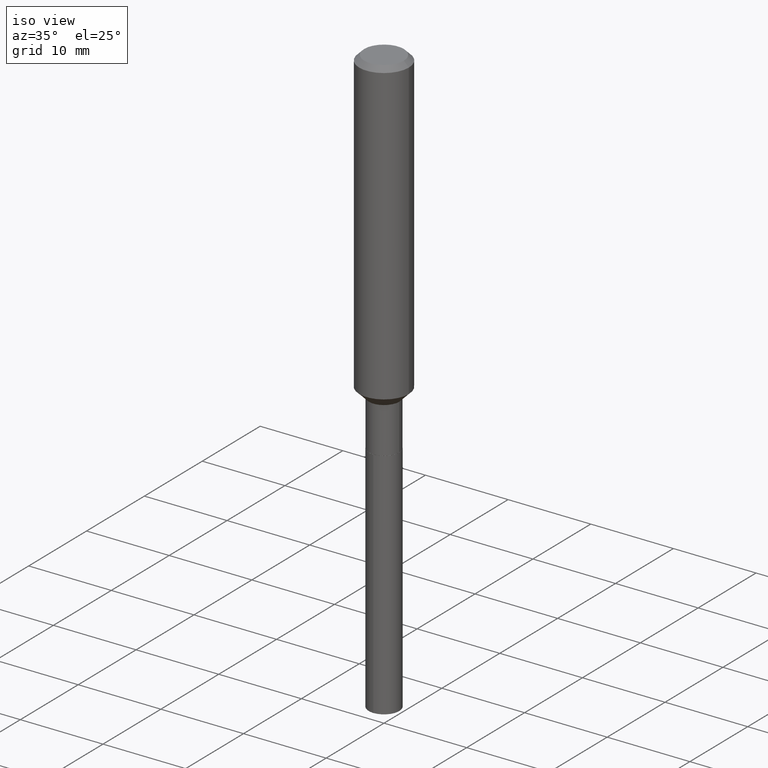
[diagram: clean part render]
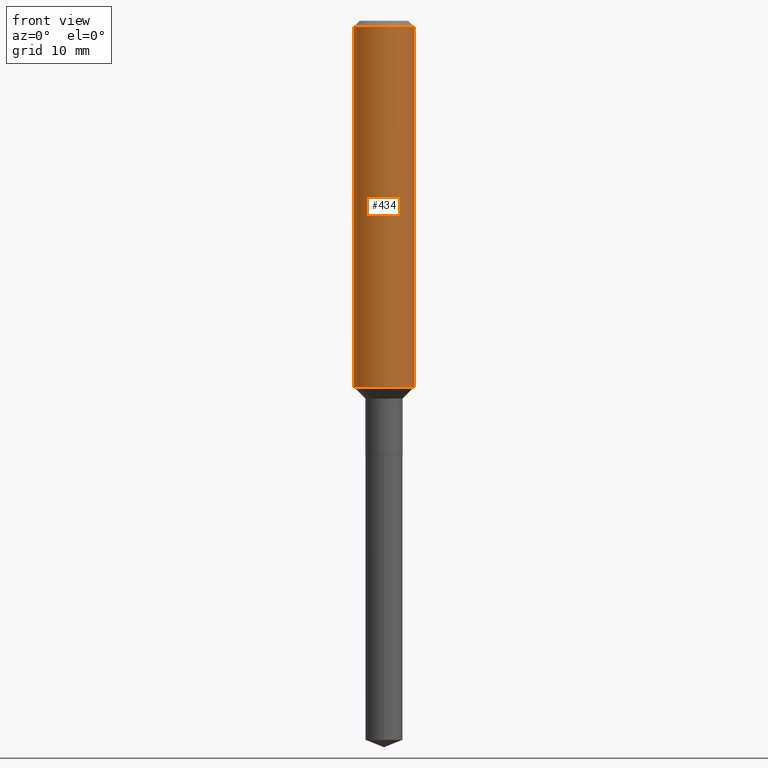
[diagram: tour spotlight — one face highlighted and labeled with its STEP entity id]
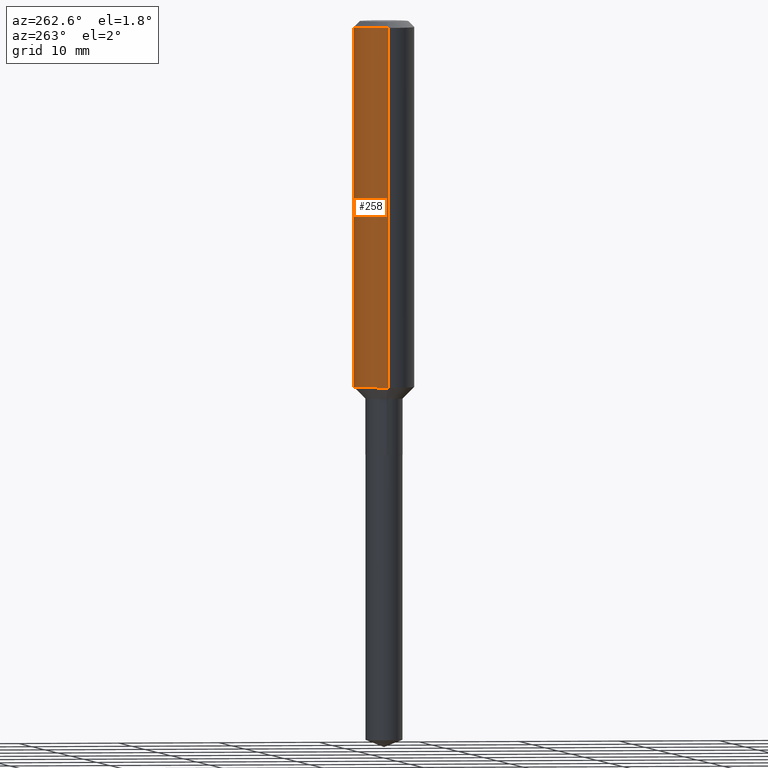
[diagram: tour spotlight — one face highlighted and labeled with its STEP entity id]
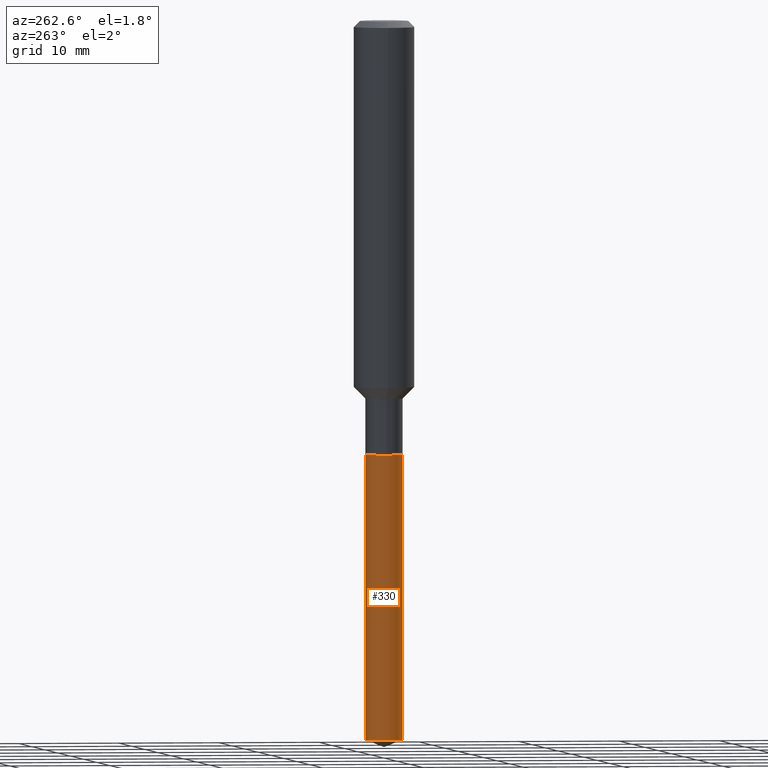
[diagram: tour spotlight — one face highlighted and labeled with its STEP entity id]
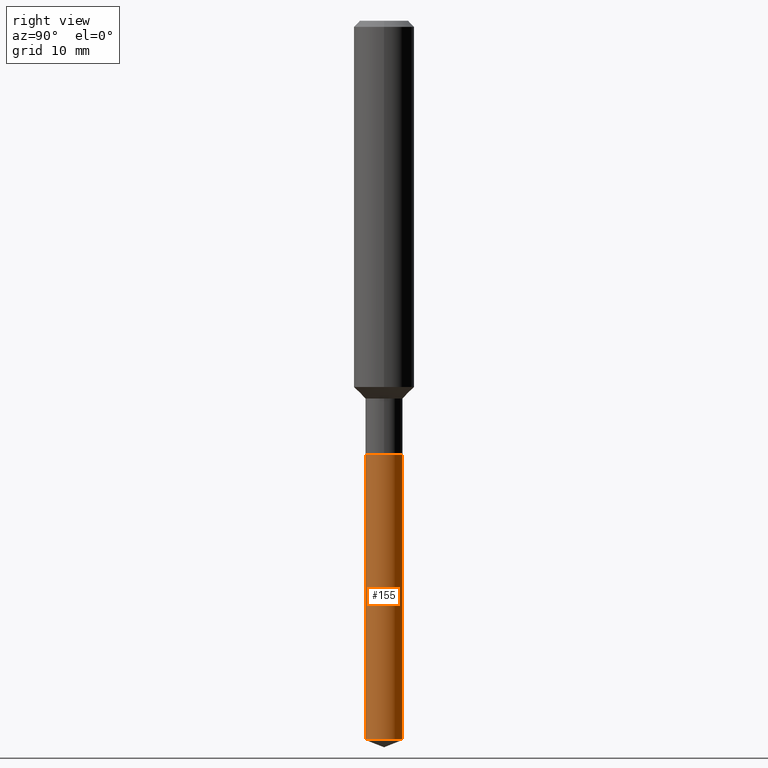
[diagram: tour spotlight — one face highlighted and labeled with its STEP entity id]
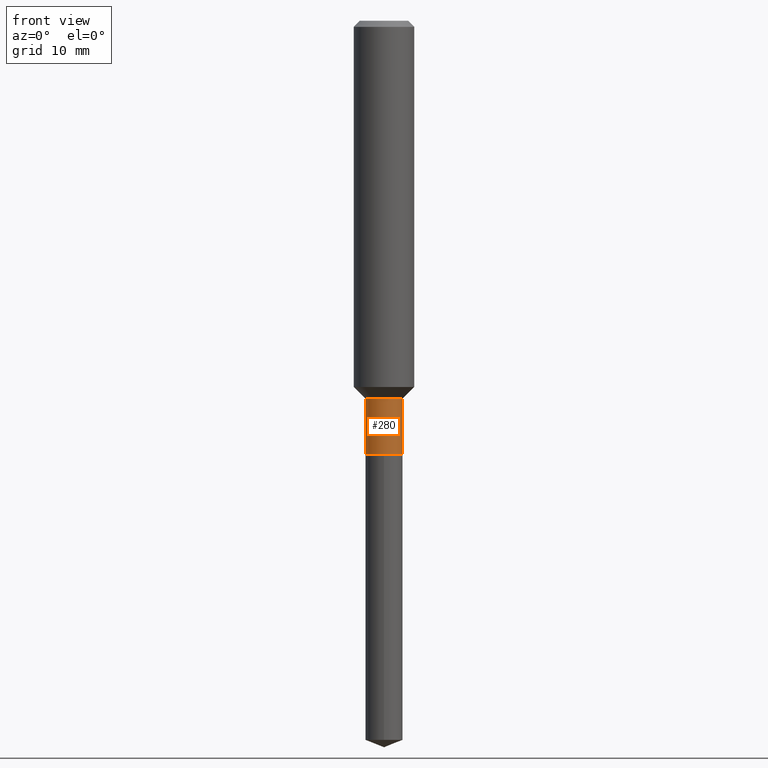
[diagram: tour spotlight — one face highlighted and labeled with its STEP entity id]
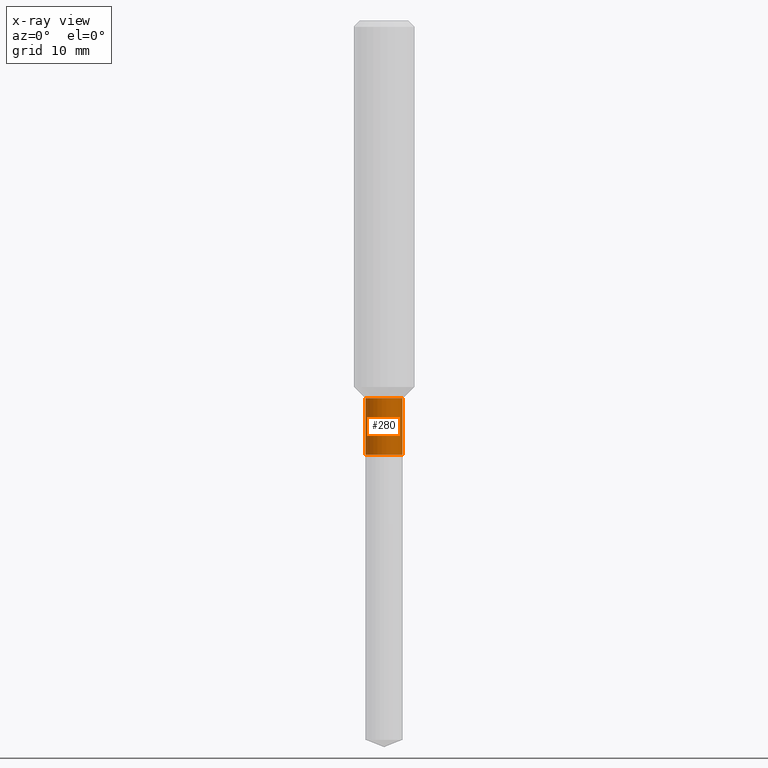
[diagram: x-ray of the same camera — body ghosted, this tour face saturated]
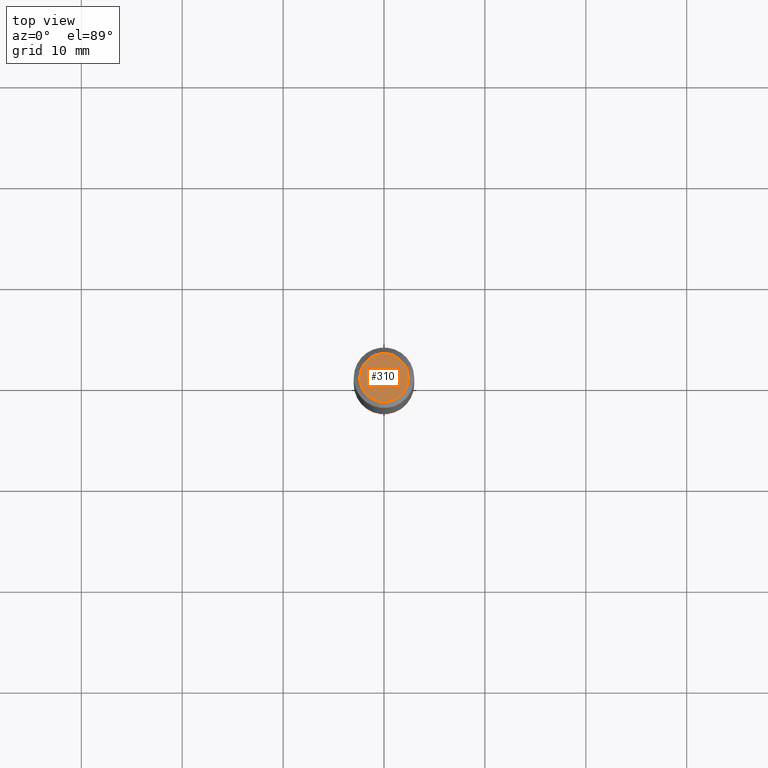
[diagram: tour spotlight — one face highlighted and labeled with its STEP entity id]
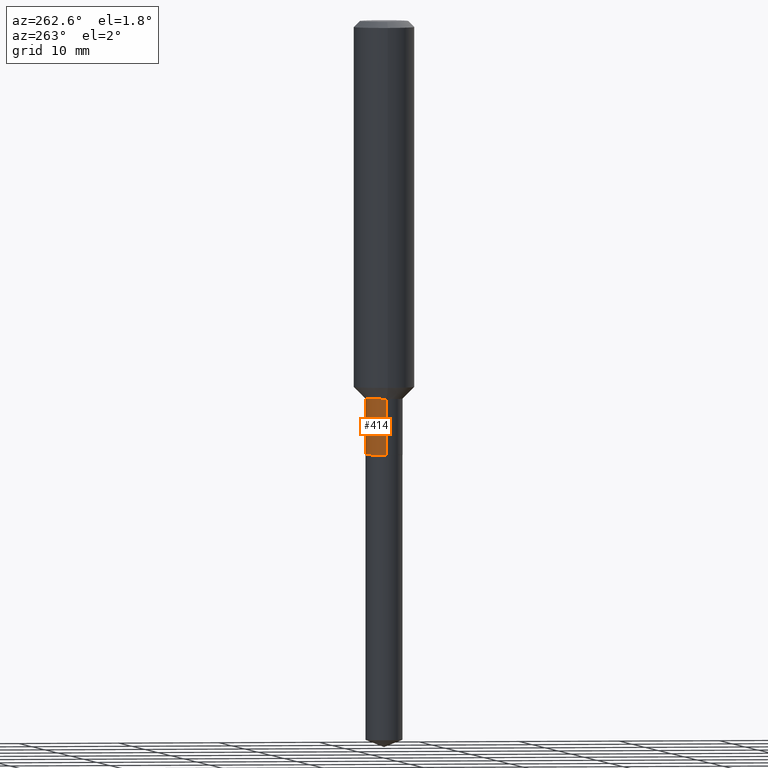
[diagram: tour spotlight — one face highlighted and labeled with its STEP entity id]
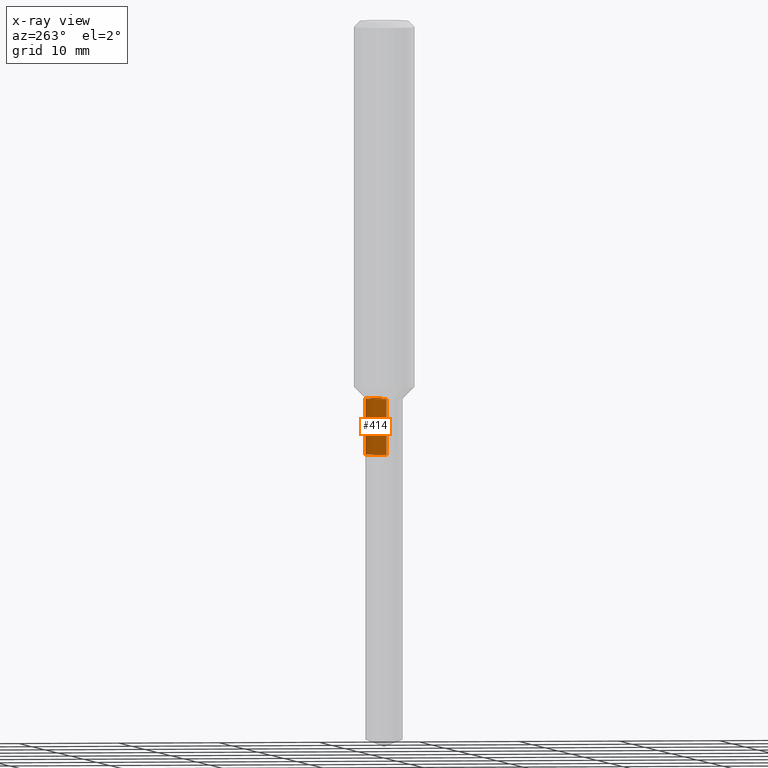
[diagram: x-ray of the same camera — body ghosted, this tour face saturated]
A machine part: a face-by-face anatomy tour. The part has 17 B-rep faces; the first image is the clean iso view, then the 7 largest visible faces are spotlighted one at a time (largest first), each with its STEP entity span.

Face 1 — front view, entity #434. In plain terms, the highlighted cylindrical surface (edge-blend (fillet) strip) has radius 2.9997 mm, axis along (-0, 0, 1).
Definition (entity closure, byte-faithful):
#9 = CARTESIAN_POINT ( 'NONE',  ( 0.1181000000000000799, -8.246878922347486570E-16, 5.758764772215004644E-30 ) ) ;
#15 = AXIS2_PLACEMENT_3D ( 'NONE', #372, #443, #107 ) ;
#17 = EDGE_CURVE ( 'NONE', #224, #122, #213, .T. ) ;
#23 = AXIS2_PLACEMENT_3D ( 'NONE', #417, #235, #80 ) ;
#41 = DIRECTION ( 'NONE',  ( -2.445468806185136597E-29, 3.491481338843145583E-15, 1.000000000000000000 ) ) ;
#45 = CARTESIAN_POINT ( 'NONE',  ( 3.494208103717631419E-29, -4.988803111006027569E-15, -1.428849999999999731 ) ) ;
#55 = EDGE_LOOP ( 'NONE', ( #442, #270, #290, #432 ) ) ;
#60 = VERTEX_POINT ( 'NONE', #128 ) ;
#61 = VECTOR ( 'NONE', #238, 39.37007874015748143 ) ;
#70 = AXIS2_PLACEMENT_3D ( 'NONE', #45, #41, #312 ) ;
#80 = DIRECTION ( 'NONE',  ( 1.000000000000000000, -6.982962677686266711E-15, 4.876176775795936353E-29 ) ) ;
#107 = DIRECTION ( 'NONE',  ( 1.000000000000000000, -6.982962677686266711E-15, 0.000000000000000000 ) ) ;
#122 = VERTEX_POINT ( 'NONE', #477 ) ;
#128 = CARTESIAN_POINT ( 'NONE',  ( -0.1181000000000001632, -4.149652140073347794E-15, -1.428849999999999731 ) ) ;
#149 = LINE ( 'NONE', #333, #461 ) ;
#183 = CARTESIAN_POINT ( 'NONE',  ( 0.1181000000000001632, -5.813491003240776621E-15, -1.428849999999999731 ) ) ;
#213 = LINE ( 'NONE', #9, #61 ) ;
#224 = VERTEX_POINT ( 'NONE', #183 ) ;
#235 = DIRECTION ( 'NONE',  ( -2.445468806185136597E-29, 3.491481338843145583E-15, 1.000000000000000000 ) ) ;
#238 = DIRECTION ( 'NONE',  ( -2.445468806185136877E-29, 3.491481338843145188E-15, 1.000000000000000000 ) ) ;
#270 = ORIENTED_EDGE ( 'NONE', *, *, #399, .T. ) ;
#290 = ORIENTED_EDGE ( 'NONE', *, *, #17, .T. ) ;
#301 = EDGE_CURVE ( 'NONE', #362, #122, #341, .T. ) ;
#312 = DIRECTION ( 'NONE',  ( 1.000000000000000000, -6.982962677686263555E-15, 0.000000000000000000 ) ) ;
#333 = CARTESIAN_POINT ( 'NONE',  ( -0.1181000000000000799, 8.391509709326788873E-16, -5.809262341591047988E-30 ) ) ;
#341 = CIRCLE ( 'NONE', #15, 0.1180999999999999966 ) ;
#348 = EDGE_CURVE ( 'NONE', #60, #362, #149, .T. ) ;
#362 = VERTEX_POINT ( 'NONE', #452 ) ;
#372 = CARTESIAN_POINT ( 'NONE',  ( 5.776197320209328408E-31, -8.246878922347560526E-17, -0.02362000000000014435 ) ) ;
#399 = EDGE_CURVE ( 'NONE', #60, #224, #428, .T. ) ;
#409 = DIRECTION ( 'NONE',  ( -2.445468806185136877E-29, 3.491481338843145188E-15, 1.000000000000000000 ) ) ;
#417 = CARTESIAN_POINT ( 'NONE',  ( 0.000000000000000000, 0.000000000000000000, 0.000000000000000000 ) ) ;
#421 = FACE_OUTER_BOUND ( 'NONE', #55, .T. ) ;
#428 = CIRCLE ( 'NONE', #70, 0.1181000000000001632 ) ;
#432 = ORIENTED_EDGE ( 'NONE', *, *, #301, .F. ) ;
#434 = ADVANCED_FACE ( 'NONE', ( #421 ), #490, .T. ) ;
#442 = ORIENTED_EDGE ( 'NONE', *, *, #348, .F. ) ;
#443 = DIRECTION ( 'NONE',  ( -2.445468806185136597E-29, 3.491481338843145583E-15, 1.000000000000000000 ) ) ;
#452 = CARTESIAN_POINT ( 'NONE',  ( -0.1180999999999999966, -1.696484979182072133E-15, -0.02362000000000014435 ) ) ;
#461 = VECTOR ( 'NONE', #409, 39.37007874015748143 ) ;
#477 = CARTESIAN_POINT ( 'NONE',  ( 0.1180999999999999966, -9.071566814582237199E-16, -0.02362000000000014435 ) ) ;
#490 = CYLINDRICAL_SURFACE ( 'NONE', #23, 0.1181000000000000799 ) ;

Face 2 — auxiliary view, entity #258. In plain terms, the highlighted cylindrical surface (edge-blend (fillet) strip) has radius 2.9997 mm, axis along (-0, 0, 1).
Definition (entity closure, byte-faithful):
#9 = CARTESIAN_POINT ( 'NONE',  ( 0.1181000000000000799, -8.246878922347486570E-16, 5.758764772215004644E-30 ) ) ;
#17 = EDGE_CURVE ( 'NONE', #224, #122, #213, .T. ) ;
#38 = DIRECTION ( 'NONE',  ( 1.000000000000000000, -6.982962677686266711E-15, 0.000000000000000000 ) ) ;
#60 = VERTEX_POINT ( 'NONE', #128 ) ;
#61 = VECTOR ( 'NONE', #238, 39.37007874015748143 ) ;
#62 = CYLINDRICAL_SURFACE ( 'NONE', #299, 0.1181000000000000799 ) ;
#66 = DIRECTION ( 'NONE',  ( 1.000000000000000000, -6.982962677686266711E-15, 4.876176775795936353E-29 ) ) ;
#83 = CIRCLE ( 'NONE', #214, 0.1180999999999999966 ) ;
#122 = VERTEX_POINT ( 'NONE', #477 ) ;
#128 = CARTESIAN_POINT ( 'NONE',  ( -0.1181000000000001632, -4.149652140073347794E-15, -1.428849999999999731 ) ) ;
#132 = DIRECTION ( 'NONE',  ( -2.445468806185136597E-29, 3.491481338843145583E-15, 1.000000000000000000 ) ) ;
#149 = LINE ( 'NONE', #333, #461 ) ;
#154 = DIRECTION ( 'NONE',  ( -2.445468806185136597E-29, 3.491481338843145583E-15, 1.000000000000000000 ) ) ;
#183 = CARTESIAN_POINT ( 'NONE',  ( 0.1181000000000001632, -5.813491003240776621E-15, -1.428849999999999731 ) ) ;
#186 = CARTESIAN_POINT ( 'NONE',  ( 0.000000000000000000, 0.000000000000000000, 0.000000000000000000 ) ) ;
#213 = LINE ( 'NONE', #9, #61 ) ;
#214 = AXIS2_PLACEMENT_3D ( 'NONE', #266, #154, #38 ) ;
#218 = EDGE_CURVE ( 'NONE', #224, #60, #268, .T. ) ;
#224 = VERTEX_POINT ( 'NONE', #183 ) ;
#233 = AXIS2_PLACEMENT_3D ( 'NONE', #471, #132, #320 ) ;
#238 = DIRECTION ( 'NONE',  ( -2.445468806185136877E-29, 3.491481338843145188E-15, 1.000000000000000000 ) ) ;
#258 = ADVANCED_FACE ( 'NONE', ( #455 ), #62, .T. ) ;
#266 = CARTESIAN_POINT ( 'NONE',  ( 5.776197320209328408E-31, -8.246878922347560526E-17, -0.02362000000000014435 ) ) ;
#268 = CIRCLE ( 'NONE', #233, 0.1181000000000001632 ) ;
#277 = ORIENTED_EDGE ( 'NONE', *, *, #348, .T. ) ;
#278 = ORIENTED_EDGE ( 'NONE', *, *, #17, .F. ) ;
#292 = ORIENTED_EDGE ( 'NONE', *, *, #218, .T. ) ;
#299 = AXIS2_PLACEMENT_3D ( 'NONE', #186, #375, #66 ) ;
#320 = DIRECTION ( 'NONE',  ( 1.000000000000000000, -6.982962677686263555E-15, 0.000000000000000000 ) ) ;
#333 = CARTESIAN_POINT ( 'NONE',  ( -0.1181000000000000799, 8.391509709326788873E-16, -5.809262341591047988E-30 ) ) ;
#348 = EDGE_CURVE ( 'NONE', #60, #362, #149, .T. ) ;
#362 = VERTEX_POINT ( 'NONE', #452 ) ;
#375 = DIRECTION ( 'NONE',  ( -2.445468806185136597E-29, 3.491481338843145583E-15, 1.000000000000000000 ) ) ;
#409 = DIRECTION ( 'NONE',  ( -2.445468806185136877E-29, 3.491481338843145188E-15, 1.000000000000000000 ) ) ;
#415 = ORIENTED_EDGE ( 'NONE', *, *, #484, .F. ) ;
#452 = CARTESIAN_POINT ( 'NONE',  ( -0.1180999999999999966, -1.696484979182072133E-15, -0.02362000000000014435 ) ) ;
#455 = FACE_OUTER_BOUND ( 'NONE', #479, .T. ) ;
#461 = VECTOR ( 'NONE', #409, 39.37007874015748143 ) ;
#471 = CARTESIAN_POINT ( 'NONE',  ( 3.494208103717631419E-29, -4.988803111006027569E-15, -1.428849999999999731 ) ) ;
#477 = CARTESIAN_POINT ( 'NONE',  ( 0.1180999999999999966, -9.071566814582237199E-16, -0.02362000000000014435 ) ) ;
#479 = EDGE_LOOP ( 'NONE', ( #292, #277, #415, #278 ) ) ;
#484 = EDGE_CURVE ( 'NONE', #122, #362, #83, .T. ) ;

Face 3 — auxiliary view, entity #330. In plain terms, the highlighted cylindrical surface (edge-blend (fillet) strip) has radius 1.8504 mm, axis along (-0, 0, 1).
Definition (entity closure, byte-faithful):
#4 = VECTOR ( 'NONE', #398, 39.37007874015748143 ) ;
#12 = EDGE_CURVE ( 'NONE', #430, #164, #418, .T. ) ;
#25 = DIRECTION ( 'NONE',  ( -2.440414050576406318E-29, 3.498720036573669606E-15, 1.000000000000000000 ) ) ;
#88 = ORIENTED_EDGE ( 'NONE', *, *, #12, .F. ) ;
#100 = CARTESIAN_POINT ( 'NONE',  ( 4.139934141990817236E-29, -5.910728758527560286E-15, -1.692899999999999849 ) ) ;
#105 = ORIENTED_EDGE ( 'NONE', *, *, #182, .T. ) ;
#106 = DIRECTION ( 'NONE',  ( -6.982962677686265922E-15, -1.000000000000000000, 3.749962928845934523E-15 ) ) ;
#129 = ORIENTED_EDGE ( 'NONE', *, *, #321, .F. ) ;
#136 = CIRCLE ( 'NONE', #378, 0.07285000000000001197 ) ;
#138 = CARTESIAN_POINT ( 'NONE',  ( 5.176303830013016027E-16, 0.07284999999999408615, -1.692900000000000071 ) ) ;
#141 = DIRECTION ( 'NONE',  ( -2.440414050576406038E-29, 3.498720036573669211E-15, 1.000000000000000000 ) ) ;
#147 = CARTESIAN_POINT ( 'NONE',  ( 4.139934141990817236E-29, -5.910728758527560286E-15, -1.692899999999999849 ) ) ;
#164 = VERTEX_POINT ( 'NONE', #138 ) ;
#182 = EDGE_CURVE ( 'NONE', #430, #395, #136, .T. ) ;
#191 = LINE ( 'NONE', #226, #475 ) ;
#199 = AXIS2_PLACEMENT_3D ( 'NONE', #100, #25, #416 ) ;
#212 = DIRECTION ( 'NONE',  ( -6.982962677686265133E-15, -1.000000000000000000, 0.000000000000000000 ) ) ;
#221 = CIRCLE ( 'NONE', #199, 0.07284999999999999809 ) ;
#226 = CARTESIAN_POINT ( 'NONE',  ( -5.087088310694030658E-16, -0.07285000000000591003, -1.692899999999999627 ) ) ;
#229 = EDGE_CURVE ( 'NONE', #395, #425, #191, .T. ) ;
#244 = DIRECTION ( 'NONE',  ( -2.440414050576406318E-29, 3.498720036573669606E-15, 1.000000000000000000 ) ) ;
#253 = CYLINDRICAL_SURFACE ( 'NONE', #365, 0.07284999999999999809 ) ;
#256 = DIRECTION ( 'NONE',  ( -2.440414050576406318E-29, 3.498720036573669606E-15, 1.000000000000000000 ) ) ;
#264 = CARTESIAN_POINT ( 'NONE',  ( -5.087088310694030658E-16, -0.07285000000000591003, -1.692899999999999627 ) ) ;
#302 = FACE_OUTER_BOUND ( 'NONE', #405, .T. ) ;
#321 = EDGE_CURVE ( 'NONE', #164, #425, #221, .T. ) ;
#330 = ADVANCED_FACE ( 'NONE', ( #302 ), #253, .T. ) ;
#344 = CARTESIAN_POINT ( 'NONE',  ( 5.176303830013016027E-16, 0.07284999999999021425, -2.805903621851451479 ) ) ;
#351 = CARTESIAN_POINT ( 'NONE',  ( 6.856123819099529673E-29, -9.804816831078297539E-15, -2.805903621851451479 ) ) ;
#365 = AXIS2_PLACEMENT_3D ( 'NONE', #147, #256, #106 ) ;
#376 = CARTESIAN_POINT ( 'NONE',  ( -5.087088310693760473E-16, -0.07285000000000982356, -2.805903621851451479 ) ) ;
#378 = AXIS2_PLACEMENT_3D ( 'NONE', #351, #244, #212 ) ;
#382 = CARTESIAN_POINT ( 'NONE',  ( 5.176303830012742884E-16, 0.07284999999999408615, -1.692900000000000071 ) ) ;
#395 = VERTEX_POINT ( 'NONE', #376 ) ;
#398 = DIRECTION ( 'NONE',  ( -2.440414050576406038E-29, 3.498720036573669211E-15, 1.000000000000000000 ) ) ;
#405 = EDGE_LOOP ( 'NONE', ( #88, #105, #423, #129 ) ) ;
#416 = DIRECTION ( 'NONE',  ( -6.982962677686265922E-15, -1.000000000000000000, 3.749962928845934523E-15 ) ) ;
#418 = LINE ( 'NONE', #382, #4 ) ;
#423 = ORIENTED_EDGE ( 'NONE', *, *, #229, .T. ) ;
#425 = VERTEX_POINT ( 'NONE', #264 ) ;
#430 = VERTEX_POINT ( 'NONE', #344 ) ;
#475 = VECTOR ( 'NONE', #141, 39.37007874015748143 ) ;

Face 4 — right view, entity #155. In plain terms, the highlighted cylindrical surface (edge-blend (fillet) strip) has radius 1.8504 mm, axis along (-0, 0, 1).
Definition (entity closure, byte-faithful):
#4 = VECTOR ( 'NONE', #398, 39.37007874015748143 ) ;
#7 = CARTESIAN_POINT ( 'NONE',  ( 4.139934141990817236E-29, -5.910728758527560286E-15, -1.692899999999999849 ) ) ;
#12 = EDGE_CURVE ( 'NONE', #430, #164, #418, .T. ) ;
#37 = DIRECTION ( 'NONE',  ( -6.982962677686265922E-15, -1.000000000000000000, 3.749962928845934523E-15 ) ) ;
#43 = CIRCLE ( 'NONE', #176, 0.07284999999999999809 ) ;
#56 = DIRECTION ( 'NONE',  ( -2.440414050576406318E-29, 3.498720036573669606E-15, 1.000000000000000000 ) ) ;
#87 = CYLINDRICAL_SURFACE ( 'NONE', #267, 0.07284999999999999809 ) ;
#130 = CARTESIAN_POINT ( 'NONE',  ( 4.139934141990817236E-29, -5.910728758527560286E-15, -1.692899999999999849 ) ) ;
#138 = CARTESIAN_POINT ( 'NONE',  ( 5.176303830013016027E-16, 0.07284999999999408615, -1.692900000000000071 ) ) ;
#141 = DIRECTION ( 'NONE',  ( -2.440414050576406038E-29, 3.498720036573669211E-15, 1.000000000000000000 ) ) ;
#155 = ADVANCED_FACE ( 'NONE', ( #208 ), #87, .T. ) ;
#164 = VERTEX_POINT ( 'NONE', #138 ) ;
#176 = AXIS2_PLACEMENT_3D ( 'NONE', #7, #200, #37 ) ;
#181 = DIRECTION ( 'NONE',  ( -6.982962677686265133E-15, -1.000000000000000000, 0.000000000000000000 ) ) ;
#191 = LINE ( 'NONE', #226, #475 ) ;
#200 = DIRECTION ( 'NONE',  ( -2.440414050576406318E-29, 3.498720036573669606E-15, 1.000000000000000000 ) ) ;
#204 = CIRCLE ( 'NONE', #482, 0.07285000000000001197 ) ;
#207 = ORIENTED_EDGE ( 'NONE', *, *, #229, .F. ) ;
#208 = FACE_OUTER_BOUND ( 'NONE', #263, .T. ) ;
#226 = CARTESIAN_POINT ( 'NONE',  ( -5.087088310694030658E-16, -0.07285000000000591003, -1.692899999999999627 ) ) ;
#229 = EDGE_CURVE ( 'NONE', #395, #425, #191, .T. ) ;
#263 = EDGE_LOOP ( 'NONE', ( #304, #286, #387, #207 ) ) ;
#264 = CARTESIAN_POINT ( 'NONE',  ( -5.087088310694030658E-16, -0.07285000000000591003, -1.692899999999999627 ) ) ;
#267 = AXIS2_PLACEMENT_3D ( 'NONE', #130, #56, #283 ) ;
#283 = DIRECTION ( 'NONE',  ( -6.982962677686265922E-15, -1.000000000000000000, 3.749962928845934523E-15 ) ) ;
#286 = ORIENTED_EDGE ( 'NONE', *, *, #12, .T. ) ;
#300 = CARTESIAN_POINT ( 'NONE',  ( 6.856123819099529673E-29, -9.804816831078297539E-15, -2.805903621851451479 ) ) ;
#304 = ORIENTED_EDGE ( 'NONE', *, *, #340, .T. ) ;
#340 = EDGE_CURVE ( 'NONE', #395, #430, #204, .T. ) ;
#344 = CARTESIAN_POINT ( 'NONE',  ( 5.176303830013016027E-16, 0.07284999999999021425, -2.805903621851451479 ) ) ;
#376 = CARTESIAN_POINT ( 'NONE',  ( -5.087088310693760473E-16, -0.07285000000000982356, -2.805903621851451479 ) ) ;
#382 = CARTESIAN_POINT ( 'NONE',  ( 5.176303830012742884E-16, 0.07284999999999408615, -1.692900000000000071 ) ) ;
#387 = ORIENTED_EDGE ( 'NONE', *, *, #419, .F. ) ;
#395 = VERTEX_POINT ( 'NONE', #376 ) ;
#398 = DIRECTION ( 'NONE',  ( -2.440414050576406038E-29, 3.498720036573669211E-15, 1.000000000000000000 ) ) ;
#418 = LINE ( 'NONE', #382, #4 ) ;
#419 = EDGE_CURVE ( 'NONE', #425, #164, #43, .T. ) ;
#425 = VERTEX_POINT ( 'NONE', #264 ) ;
#430 = VERTEX_POINT ( 'NONE', #344 ) ;
#475 = VECTOR ( 'NONE', #141, 39.37007874015748143 ) ;
#482 = AXIS2_PLACEMENT_3D ( 'NONE', #300, #485, #181 ) ;
#485 = DIRECTION ( 'NONE',  ( -2.440414050576406318E-29, 3.498720036573669606E-15, 1.000000000000000000 ) ) ;

Face 5 — front view, entity #280. An x-ray twin of the same camera follows (body ghosted, this face saturated) — the face is partly hidden behind the body. In plain terms, the highlighted cylindrical surface (edge-blend (fillet) strip) has radius 1.8504 mm, axis along (-0, 0, 1).
Definition (entity closure, byte-faithful):
#14 = AXIS2_PLACEMENT_3D ( 'NONE', #480, #26, #453 ) ;
#20 = CARTESIAN_POINT ( 'NONE',  ( 4.138711407587725556E-29, -5.908983017858139571E-15, -1.692399999999999904 ) ) ;
#26 = DIRECTION ( 'NONE',  ( -2.445468806185136597E-29, 3.491481338843145583E-15, 1.000000000000000000 ) ) ;
#39 = VERTEX_POINT ( 'NONE', #324 ) ;
#52 = VECTOR ( 'NONE', #368, 39.37007874015748143 ) ;
#63 = EDGE_CURVE ( 'NONE', #445, #171, #276, .T. ) ;
#65 = LINE ( 'NONE', #216, #52 ) ;
#85 = DIRECTION ( 'NONE',  ( -2.445468806185136597E-29, 3.491481338843145583E-15, 1.000000000000000000 ) ) ;
#109 = CIRCLE ( 'NONE', #388, 0.07284999999999997033 ) ;
#148 = ORIENTED_EDGE ( 'NONE', *, *, #426, .F. ) ;
#159 = EDGE_LOOP ( 'NONE', ( #227, #223, #206, #148 ) ) ;
#171 = VERTEX_POINT ( 'NONE', #360 ) ;
#196 = DIRECTION ( 'NONE',  ( -2.445468806185136877E-29, 3.491481338843145188E-15, 1.000000000000000000 ) ) ;
#206 = ORIENTED_EDGE ( 'NONE', *, *, #463, .T. ) ;
#216 = CARTESIAN_POINT ( 'NONE',  ( -0.07284999999999998421, 5.176303830012328732E-16, -3.583444213250698428E-30 ) ) ;
#223 = ORIENTED_EDGE ( 'NONE', *, *, #63, .T. ) ;
#227 = ORIENTED_EDGE ( 'NONE', *, *, #359, .F. ) ;
#230 = CARTESIAN_POINT ( 'NONE',  ( 0.07284999999999998421, -5.087088310694443823E-16, 3.552294781167338121E-30 ) ) ;
#237 = CARTESIAN_POINT ( 'NONE',  ( -0.07284999999999999809, -5.010257446722176396E-15, -1.692399999999999904 ) ) ;
#240 = VECTOR ( 'NONE', #196, 39.37007874015748143 ) ;
#250 = DIRECTION ( 'NONE',  ( 1.000000000000000000, -6.982962677686265922E-15, 0.000000000000000000 ) ) ;
#276 = CIRCLE ( 'NONE', #407, 0.07284999999999999809 ) ;
#280 = ADVANCED_FACE ( 'NONE', ( #370 ), #366, .T. ) ;
#307 = LINE ( 'NONE', #230, #240 ) ;
#324 = CARTESIAN_POINT ( 'NONE',  ( -0.07284999999999997033, -5.010257446722176396E-15, -1.474099999999999744 ) ) ;
#342 = CARTESIAN_POINT ( 'NONE',  ( 0.07284999999999997033, -5.655501472658124631E-15, -1.474099999999999744 ) ) ;
#347 = CARTESIAN_POINT ( 'NONE',  ( 3.604865567197509213E-29, -5.146792641588679559E-15, -1.474099999999999744 ) ) ;
#359 = EDGE_CURVE ( 'NONE', #445, #39, #65, .T. ) ;
#360 = CARTESIAN_POINT ( 'NONE',  ( 0.07284999999999999809, -6.417691848927583855E-15, -1.692399999999999904 ) ) ;
#366 = CYLINDRICAL_SURFACE ( 'NONE', #14, 0.07284999999999998421 ) ;
#368 = DIRECTION ( 'NONE',  ( -2.445468806185136877E-29, 3.491481338843145188E-15, 1.000000000000000000 ) ) ;
#370 = FACE_OUTER_BOUND ( 'NONE', #159, .T. ) ;
#379 = DIRECTION ( 'NONE',  ( -2.445468806185136597E-29, 3.491481338843145583E-15, 1.000000000000000000 ) ) ;
#381 = DIRECTION ( 'NONE',  ( 1.000000000000000000, -6.982962677686269077E-15, 0.000000000000000000 ) ) ;
#388 = AXIS2_PLACEMENT_3D ( 'NONE', #347, #379, #381 ) ;
#407 = AXIS2_PLACEMENT_3D ( 'NONE', #20, #85, #250 ) ;
#426 = EDGE_CURVE ( 'NONE', #39, #466, #109, .T. ) ;
#445 = VERTEX_POINT ( 'NONE', #237 ) ;
#453 = DIRECTION ( 'NONE',  ( 1.000000000000000000, -6.982962677686265922E-15, 4.876176775795935232E-29 ) ) ;
#463 = EDGE_CURVE ( 'NONE', #171, #466, #307, .T. ) ;
#466 = VERTEX_POINT ( 'NONE', #342 ) ;
#480 = CARTESIAN_POINT ( 'NONE',  ( 0.000000000000000000, 0.000000000000000000, 0.000000000000000000 ) ) ;

Face 6 — top view, entity #310. In plain terms, the highlighted planar face has unit normal (0, -0, -1).
Definition (entity closure, byte-faithful):
#2 = EDGE_LOOP ( 'NONE', ( #111, #99 ) ) ;
#6 = EDGE_CURVE ( 'NONE', #8, #236, #134, .T. ) ;
#8 = VERTEX_POINT ( 'NONE', #190 ) ;
#28 = CARTESIAN_POINT ( 'NONE',  ( 4.716267017698007905E-46, -6.733579360998555036E-32, -1.928573779297252010E-17 ) ) ;
#31 = DIRECTION ( 'NONE',  ( -1.000000000000000000, 6.982962677686265922E-15, -4.876176775795935793E-29 ) ) ;
#35 = CIRCLE ( 'NONE', #254, 0.09447999999999998066 ) ;
#99 = ORIENTED_EDGE ( 'NONE', *, *, #271, .T. ) ;
#101 = CARTESIAN_POINT ( 'NONE',  ( 2.358133508849003952E-46, -3.366789680499277518E-32, -9.642868896486260050E-18 ) ) ;
#111 = ORIENTED_EDGE ( 'NONE', *, *, #6, .T. ) ;
#134 = CIRCLE ( 'NONE', #231, 0.09447999999999998066 ) ;
#143 = PLANE ( 'NONE',  #158 ) ;
#152 = DIRECTION ( 'NONE',  ( 1.000000000000000000, -6.982962677686267499E-15, 4.875432709231658792E-29 ) ) ;
#158 = AXIS2_PLACEMENT_3D ( 'NONE', #101, #188, #31 ) ;
#188 = DIRECTION ( 'NONE',  ( 2.438088387897960049E-29, -3.491481338843145188E-15, -1.000000000000000000 ) ) ;
#190 = CARTESIAN_POINT ( 'NONE',  ( -0.09447999999999998066, 7.009847083995354710E-16, -1.928573779297727792E-17 ) ) ;
#220 = CARTESIAN_POINT ( 'NONE',  ( 4.716267017698007905E-46, -6.733579360998555036E-32, -1.928573779297252010E-17 ) ) ;
#231 = AXIS2_PLACEMENT_3D ( 'NONE', #220, #374, #152 ) ;
#236 = VERTEX_POINT ( 'NONE', #297 ) ;
#254 = AXIS2_PLACEMENT_3D ( 'NONE', #28, #336, #446 ) ;
#257 = FACE_OUTER_BOUND ( 'NONE', #2, .T. ) ;
#271 = EDGE_CURVE ( 'NONE', #236, #8, #35, .T. ) ;
#297 = CARTESIAN_POINT ( 'NONE',  ( 0.09447999999999998066, -7.704367267948738690E-16, -1.928573779296752193E-17 ) ) ;
#310 = ADVANCED_FACE ( 'NONE', ( #257 ), #143, .F. ) ;
#336 = DIRECTION ( 'NONE',  ( -2.445468806185136597E-29, 3.491481338843145583E-15, 1.000000000000000000 ) ) ;
#374 = DIRECTION ( 'NONE',  ( -2.445468806185136597E-29, 3.491481338843145583E-15, 1.000000000000000000 ) ) ;
#446 = DIRECTION ( 'NONE',  ( 1.000000000000000000, -6.982962677686267499E-15, 4.875432709231658792E-29 ) ) ;

Face 7 — auxiliary view, entity #414. An x-ray twin of the same camera follows (body ghosted, this face saturated) — the face is partly hidden behind the body. In plain terms, the highlighted cylindrical surface (edge-blend (fillet) strip) has radius 1.8504 mm, axis along (-0, 0, 1).
Definition (entity closure, byte-faithful):
#13 = AXIS2_PLACEMENT_3D ( 'NONE', #437, #400, #281 ) ;
#34 = DIRECTION ( 'NONE',  ( -2.445468806185136597E-29, 3.491481338843145583E-15, 1.000000000000000000 ) ) ;
#39 = VERTEX_POINT ( 'NONE', #324 ) ;
#40 = ORIENTED_EDGE ( 'NONE', *, *, #46, .T. ) ;
#46 = EDGE_CURVE ( 'NONE', #171, #445, #371, .T. ) ;
#52 = VECTOR ( 'NONE', #368, 39.37007874015748143 ) ;
#65 = LINE ( 'NONE', #216, #52 ) ;
#72 = ORIENTED_EDGE ( 'NONE', *, *, #133, .F. ) ;
#78 = DIRECTION ( 'NONE',  ( 1.000000000000000000, -6.982962677686265922E-15, 4.876176775795935232E-29 ) ) ;
#125 = CARTESIAN_POINT ( 'NONE',  ( 4.138711407587725556E-29, -5.908983017858139571E-15, -1.692399999999999904 ) ) ;
#133 = EDGE_CURVE ( 'NONE', #466, #39, #448, .T. ) ;
#157 = AXIS2_PLACEMENT_3D ( 'NONE', #125, #167, #373 ) ;
#167 = DIRECTION ( 'NONE',  ( -2.445468806185136597E-29, 3.491481338843145583E-15, 1.000000000000000000 ) ) ;
#171 = VERTEX_POINT ( 'NONE', #360 ) ;
#196 = DIRECTION ( 'NONE',  ( -2.445468806185136877E-29, 3.491481338843145188E-15, 1.000000000000000000 ) ) ;
#198 = FACE_OUTER_BOUND ( 'NONE', #447, .T. ) ;
#216 = CARTESIAN_POINT ( 'NONE',  ( -0.07284999999999998421, 5.176303830012328732E-16, -3.583444213250698428E-30 ) ) ;
#228 = CYLINDRICAL_SURFACE ( 'NONE', #331, 0.07284999999999998421 ) ;
#230 = CARTESIAN_POINT ( 'NONE',  ( 0.07284999999999998421, -5.087088310694443823E-16, 3.552294781167338121E-30 ) ) ;
#237 = CARTESIAN_POINT ( 'NONE',  ( -0.07284999999999999809, -5.010257446722176396E-15, -1.692399999999999904 ) ) ;
#240 = VECTOR ( 'NONE', #196, 39.37007874015748143 ) ;
#281 = DIRECTION ( 'NONE',  ( 1.000000000000000000, -6.982962677686269077E-15, 0.000000000000000000 ) ) ;
#287 = ORIENTED_EDGE ( 'NONE', *, *, #463, .F. ) ;
#307 = LINE ( 'NONE', #230, #240 ) ;
#318 = ORIENTED_EDGE ( 'NONE', *, *, #359, .T. ) ;
#324 = CARTESIAN_POINT ( 'NONE',  ( -0.07284999999999997033, -5.010257446722176396E-15, -1.474099999999999744 ) ) ;
#331 = AXIS2_PLACEMENT_3D ( 'NONE', #385, #34, #78 ) ;
#342 = CARTESIAN_POINT ( 'NONE',  ( 0.07284999999999997033, -5.655501472658124631E-15, -1.474099999999999744 ) ) ;
#359 = EDGE_CURVE ( 'NONE', #445, #39, #65, .T. ) ;
#360 = CARTESIAN_POINT ( 'NONE',  ( 0.07284999999999999809, -6.417691848927583855E-15, -1.692399999999999904 ) ) ;
#368 = DIRECTION ( 'NONE',  ( -2.445468806185136877E-29, 3.491481338843145188E-15, 1.000000000000000000 ) ) ;
#371 = CIRCLE ( 'NONE', #157, 0.07284999999999999809 ) ;
#373 = DIRECTION ( 'NONE',  ( 1.000000000000000000, -6.982962677686265922E-15, 0.000000000000000000 ) ) ;
#385 = CARTESIAN_POINT ( 'NONE',  ( 0.000000000000000000, 0.000000000000000000, 0.000000000000000000 ) ) ;
#400 = DIRECTION ( 'NONE',  ( -2.445468806185136597E-29, 3.491481338843145583E-15, 1.000000000000000000 ) ) ;
#414 = ADVANCED_FACE ( 'NONE', ( #198 ), #228, .T. ) ;
#437 = CARTESIAN_POINT ( 'NONE',  ( 3.604865567197509213E-29, -5.146792641588679559E-15, -1.474099999999999744 ) ) ;
#445 = VERTEX_POINT ( 'NONE', #237 ) ;
#447 = EDGE_LOOP ( 'NONE', ( #40, #318, #72, #287 ) ) ;
#448 = CIRCLE ( 'NONE', #13, 0.07284999999999997033 ) ;
#463 = EDGE_CURVE ( 'NONE', #171, #466, #307, .T. ) ;
#466 = VERTEX_POINT ( 'NONE', #342 ) ;